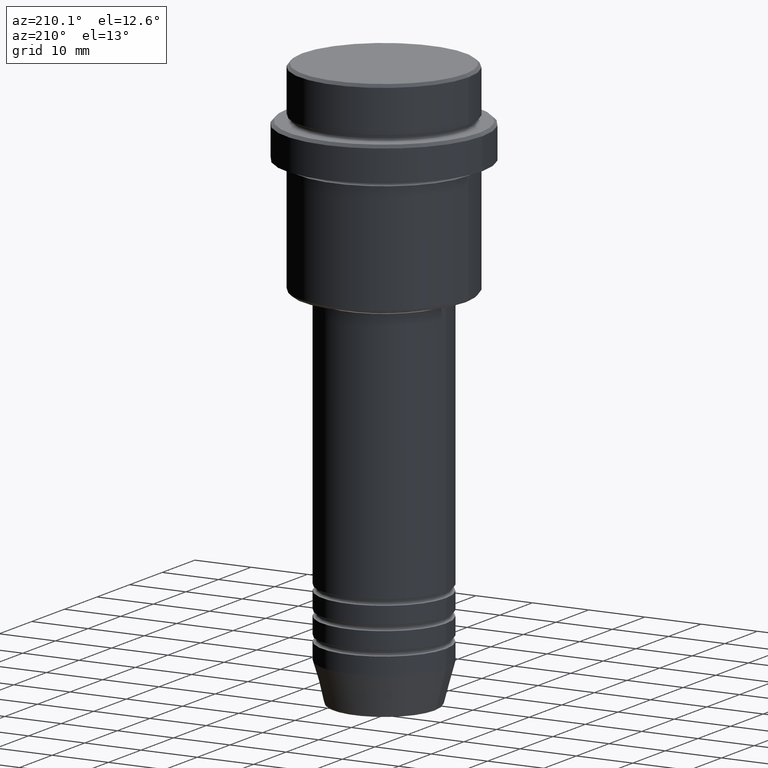
[diagram: clean part render]
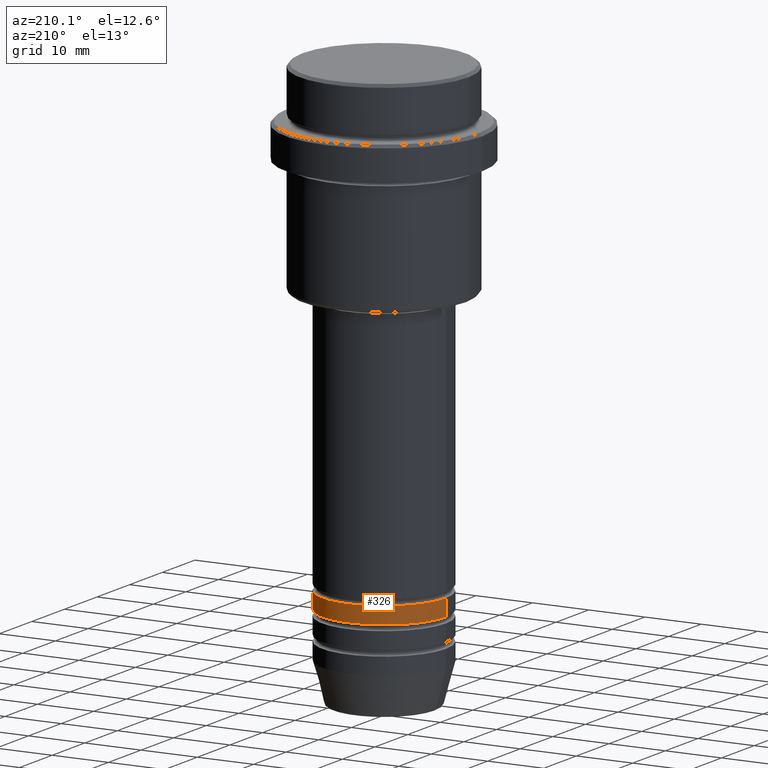
[diagram: same view with one face highlighted and labeled with its STEP entity id]
A machine part, auxiliary view. The second image highlights one B-rep face of the part: STEP entity #326.
In plain terms, the highlighted cylindrical surface (partial cylindrical patch) has radius 11 mm, axis along (-0, -0, 1).
Its self-contained STEP definition (entity closure, byte-faithful):
#160 = CARTESIAN_POINT ( 'NONE',  ( 11.00000000000000000, 0.000000000000000000, 0.000000000000000000 ) ) ;
#210 = CARTESIAN_POINT ( 'NONE',  ( 11.00000000000000000, 0.000000000000000000, -82.99999999999988631 ) ) ;
#244 = DIRECTION ( 'NONE',  ( -0.000000000000000000, -0.000000000000000000, 1.000000000000000000 ) ) ;
#316 = CIRCLE ( 'NONE', #667, 11.00000000000000000 ) ;
#326 = ADVANCED_FACE ( 'NONE', ( #333 ), #442, .T. ) ;
#333 = FACE_OUTER_BOUND ( 'NONE', #402, .T. ) ;
#350 = VERTEX_POINT ( 'NONE', #1020 ) ;
#366 = AXIS2_PLACEMENT_3D ( 'NONE', #559, #769, #1198 ) ;
#383 = DIRECTION ( 'NONE',  ( 1.000000000000000000, 0.000000000000000000, 0.000000000000000000 ) ) ;
#402 = EDGE_LOOP ( 'NONE', ( #945, #807, #674, #1187 ) ) ;
#442 = CYLINDRICAL_SURFACE ( 'NONE', #366, 11.00000000000000000 ) ;
#444 = CARTESIAN_POINT ( 'NONE',  ( 11.00000000000000000, 0.000000000000000000, -85.99999999999988631 ) ) ;
#475 = EDGE_CURVE ( 'NONE', #1257, #1220, #1138, .T. ) ;
#520 = AXIS2_PLACEMENT_3D ( 'NONE', #1161, #840, #1069 ) ;
#559 = CARTESIAN_POINT ( 'NONE',  ( 0.000000000000000000, 0.000000000000000000, 0.000000000000000000 ) ) ;
#605 = EDGE_CURVE ( 'NONE', #1220, #350, #621, .T. ) ;
#621 = CIRCLE ( 'NONE', #520, 11.00000000000000000 ) ;
#623 = EDGE_CURVE ( 'NONE', #1257, #865, #316, .T. ) ;
#667 = AXIS2_PLACEMENT_3D ( 'NONE', #1387, #932, #383 ) ;
#674 = ORIENTED_EDGE ( 'NONE', *, *, #605, .F. ) ;
#769 = DIRECTION ( 'NONE',  ( -0.000000000000000000, -0.000000000000000000, 1.000000000000000000 ) ) ;
#807 = ORIENTED_EDGE ( 'NONE', *, *, #1180, .T. ) ;
#840 = DIRECTION ( 'NONE',  ( -0.000000000000000000, -0.000000000000000000, 1.000000000000000000 ) ) ;
#865 = VERTEX_POINT ( 'NONE', #1360 ) ;
#932 = DIRECTION ( 'NONE',  ( -0.000000000000000000, -0.000000000000000000, 1.000000000000000000 ) ) ;
#945 = ORIENTED_EDGE ( 'NONE', *, *, #623, .T. ) ;
#1020 = CARTESIAN_POINT ( 'NONE',  ( -11.00000000000000000, 1.347111479062088405E-15, -82.99999999999988631 ) ) ;
#1069 = DIRECTION ( 'NONE',  ( 1.000000000000000000, 0.000000000000000000, 0.000000000000000000 ) ) ;
#1093 = CARTESIAN_POINT ( 'NONE',  ( -11.00000000000000000, 1.347111479062088405E-15, 0.000000000000000000 ) ) ;
#1138 = LINE ( 'NONE', #160, #1232 ) ;
#1161 = CARTESIAN_POINT ( 'NONE',  ( 0.000000000000000000, 0.000000000000000000, -82.99999999999988631 ) ) ;
#1175 = DIRECTION ( 'NONE',  ( -0.000000000000000000, -0.000000000000000000, 1.000000000000000000 ) ) ;
#1180 = EDGE_CURVE ( 'NONE', #865, #350, #1195, .T. ) ;
#1187 = ORIENTED_EDGE ( 'NONE', *, *, #475, .F. ) ;
#1195 = LINE ( 'NONE', #1093, #1282 ) ;
#1198 = DIRECTION ( 'NONE',  ( 1.000000000000000000, 0.000000000000000000, 0.000000000000000000 ) ) ;
#1220 = VERTEX_POINT ( 'NONE', #210 ) ;
#1232 = VECTOR ( 'NONE', #244, 1000.000000000000000 ) ;
#1257 = VERTEX_POINT ( 'NONE', #444 ) ;
#1282 = VECTOR ( 'NONE', #1175, 1000.000000000000000 ) ;
#1360 = CARTESIAN_POINT ( 'NONE',  ( -11.00000000000000000, 1.347111479062088405E-15, -85.99999999999988631 ) ) ;
#1387 = CARTESIAN_POINT ( 'NONE',  ( 0.000000000000000000, 0.000000000000000000, -85.99999999999988631 ) ) ;